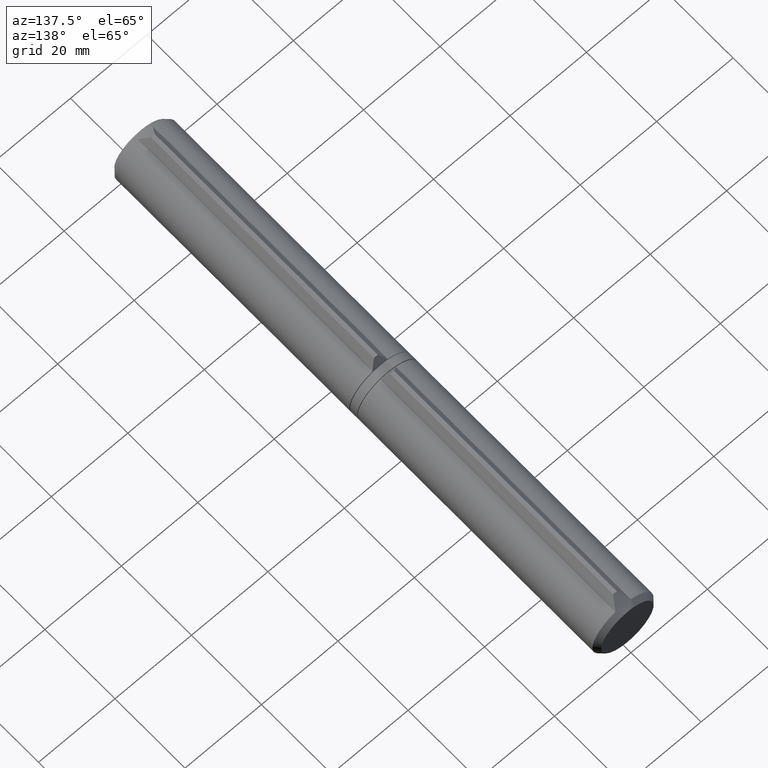
[diagram: clean part render]
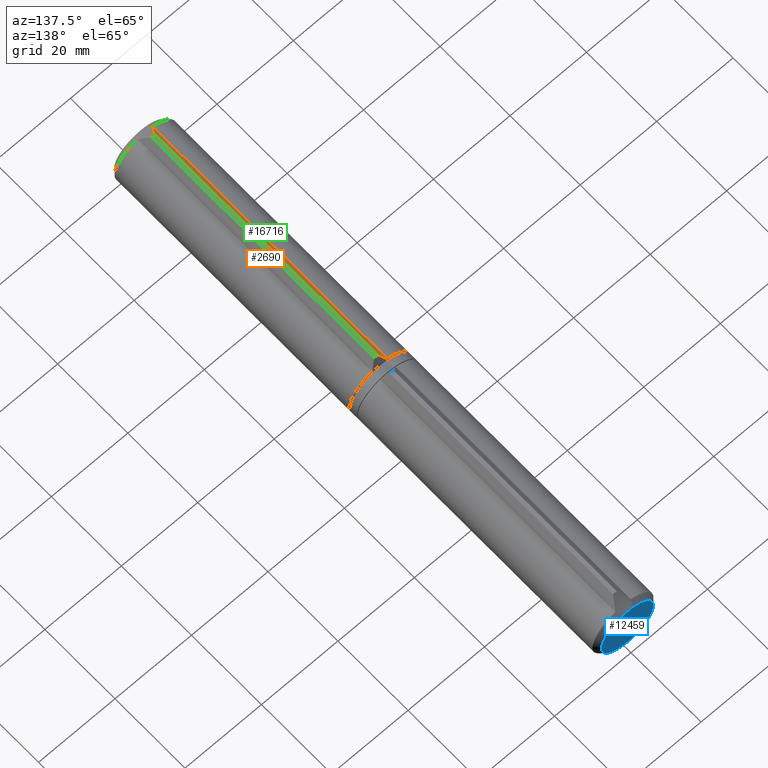
[diagram: same view with three faces highlighted in distinct colors, each labeled with its STEP entity id]
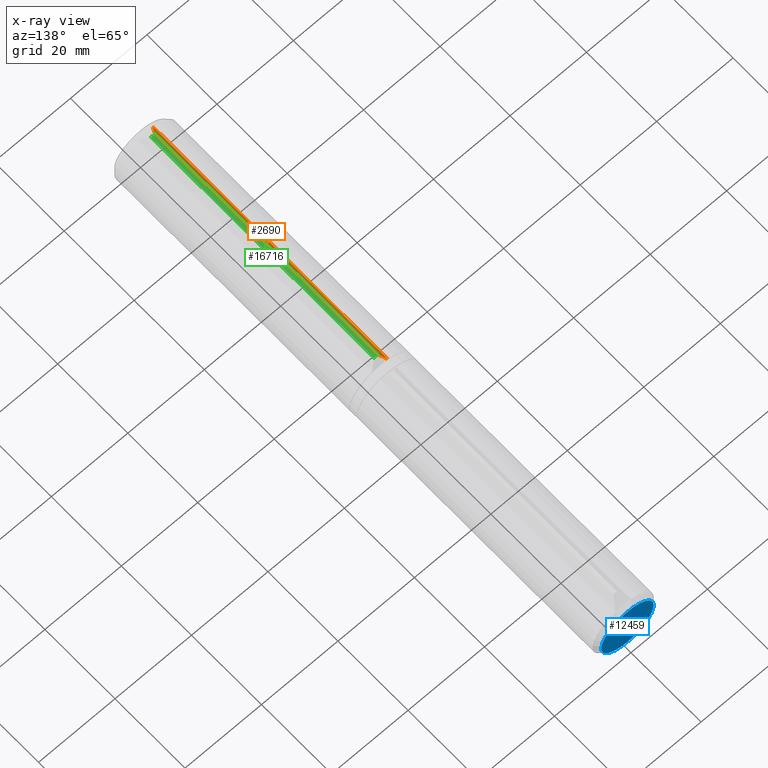
[diagram: x-ray of the same camera — body ghosted, the three highlighted faces saturated]
A machine part, auxiliary view with three faces highlighted in distinct colors.
The next image is the same camera in x-ray (body ghosted, the three faces saturated) — at least one of them is partly hidden behind the body in this view.
Their STEP definitions:

[orange] entity #2690 — the highlighted planar face has unit normal (-0.8325, 0, 0.554).
#359 = CARTESIAN_POINT ( 'NONE',  ( 0.9837837391402639575, 2.768140612047258031, -9.273023558873120464 ) ) ;
#674 = EDGE_CURVE ( 'NONE', #1405, #2374, #11466, .T. ) ;
#1271 = CARTESIAN_POINT ( 'NONE',  ( 1.491950127105262647, 67.99988805233594746, -8.509407582693935268 ) ) ;
#1405 = VERTEX_POINT ( 'NONE', #6624 ) ;
#1620 = CARTESIAN_POINT ( 'NONE',  ( 1.479702347256634409, 1.995575315282819284, -8.527812185176072646 ) ) ;
#2102 = EDGE_CURVE ( 'NONE', #4470, #1405, #10869, .T. ) ;
#2345 = ORIENTED_EDGE ( 'NONE', *, *, #6307, .F. ) ;
#2374 = VERTEX_POINT ( 'NONE', #14223 ) ;
#2535 = CARTESIAN_POINT ( 'NONE',  ( 0.5000000000000083267, 3.561355707479157306, -10.00000000000000000 ) ) ;
#2690 = ADVANCED_FACE ( 'NONE', ( #9147 ), #12343, .T. ) ;
#3727 = CARTESIAN_POINT ( 'NONE',  ( 2.000000000000202505, 68.35333380148330207, -7.745966692414835819 ) ) ;
#3980 = VERTEX_POINT ( 'NONE', #15847 ) ;
#4135 = CARTESIAN_POINT ( 'NONE',  ( 2.000000000000011546, 1.287078023558480000, -7.745966692414834931 ) ) ;
#4470 = VERTEX_POINT ( 'NONE', #2535 ) ;
#5493 = DIRECTION ( 'NONE',  ( 2.886579864025390439E-15, 1.000000000000000000, 0.000000000000000000 ) ) ;
#5940 = CARTESIAN_POINT ( 'NONE',  ( 1.999999999999988232, -4.591368657786415675, -7.745966692414835819 ) ) ;
#6307 = EDGE_CURVE ( 'NONE', #2374, #3980, #9541, .T. ) ;
#6624 = CARTESIAN_POINT ( 'NONE',  ( 2.000000000000011546, 1.287078023558480000, -7.745966692414834931 ) ) ;
#7128 = VECTOR ( 'NONE', #14105, 1000.000000000000000 ) ;
#7576 = CARTESIAN_POINT ( 'NONE',  ( 1.999999999999988232, -4.591368657786415675, -7.745966692414835819 ) ) ;
#8059 = CARTESIAN_POINT ( 'NONE',  ( 0.4999999999999886202, -4.591368657786438767, -10.00000000000000000 ) ) ;
#8071 = CARTESIAN_POINT ( 'NONE',  ( 0.5000000000000083267, 3.561355707479157306, -10.00000000000000000 ) ) ;
#9147 = FACE_OUTER_BOUND ( 'NONE', #13722, .T. ) ;
#9380 = VECTOR ( 'NONE', #5493, 1000.000000000000000 ) ;
#9541 = B_SPLINE_CURVE_WITH_KNOTS ( 'NONE', 3,
 ( #3727, #1271, #11628, #12937 ),
 .UNSPECIFIED., .F., .F.,
 ( 4, 4 ),
 ( 2.572824265816972799E-07, 0.002946561368288068330 ),
 .UNSPECIFIED. ) ;
#9745 = DIRECTION ( 'NONE',  ( 0.8325083697999536847, 2.403101896897176945E-15, -0.5540124675609958693 ) ) ;
#10691 = ORIENTED_EDGE ( 'NONE', *, *, #674, .F. ) ;
#10869 = B_SPLINE_CURVE_WITH_KNOTS ( 'NONE', 3,
 ( #8071, #359, #1620, #4135 ),
 .UNSPECIFIED., .F., .F.,
 ( 4, 4 ),
 ( 0.01086577870587800490, 0.01440535464140346548 ),
 .UNSPECIFIED. ) ;
#11466 = LINE ( 'NONE', #7576, #7128 ) ;
#11628 = CARTESIAN_POINT ( 'NONE',  ( 0.9937491818950969780, 67.60501674752667611, -9.258048598943354079 ) ) ;
#11748 = ORIENTED_EDGE ( 'NONE', *, *, #2102, .F. ) ;
#12343 = PLANE ( 'NONE',  #14566 ) ;
#12937 = CARTESIAN_POINT ( 'NONE',  ( 0.5000000000001936229, 67.19142088965877235, -10.00000000000000000 ) ) ;
#13536 = DIRECTION ( 'NONE',  ( -0.5540124675609958693, -1.599201233280607850E-15, -0.8325083697999536847 ) ) ;
#13722 = EDGE_LOOP ( 'NONE', ( #2345, #10691, #11748, #14903 ) ) ;
#14105 = DIRECTION ( 'NONE',  ( 2.886579864025390439E-15, 1.000000000000000000, 0.000000000000000000 ) ) ;
#14223 = CARTESIAN_POINT ( 'NONE',  ( 2.000000000000202505, 68.35333380148330207, -7.745966692414835819 ) ) ;
#14566 = AXIS2_PLACEMENT_3D ( 'NONE', #5940, #9745, #13536 ) ;
#14903 = ORIENTED_EDGE ( 'NONE', *, *, #16447, .T. ) ;
#15847 = CARTESIAN_POINT ( 'NONE',  ( 0.5000000000001936229, 67.19142088965877235, -10.00000000000000000 ) ) ;
#16310 = LINE ( 'NONE', #8059, #9380 ) ;
#16447 = EDGE_CURVE ( 'NONE', #4470, #3980, #16310, .T. ) ;

[blue] entity #12459 — the highlighted planar face has unit normal (-0, -1, 0).
#1399 = AXIS2_PLACEMENT_3D ( 'NONE', #10848, #8048, #5653 ) ;
#4330 = EDGE_CURVE ( 'NONE', #4486, #4486, #8723, .T. ) ;
#4486 = VERTEX_POINT ( 'NONE', #7105 ) ;
#5653 = DIRECTION ( 'NONE',  ( 0.000000000000000000, -0.000000000000000000, 1.000000000000000000 ) ) ;
#6333 = DIRECTION ( 'NONE',  ( -0.000000000000000000, -1.000000000000000000, -1.899128710886516785E-18 ) ) ;
#6532 = DIRECTION ( 'NONE',  ( 0.000000000000000000, 1.899128710886517170E-18, -1.000000000000000000 ) ) ;
#6958 = EDGE_LOOP ( 'NONE', ( #12975 ) ) ;
#7105 = CARTESIAN_POINT ( 'NONE',  ( 0.000000000000000000, 0.000000000000000000, -6.861073782688430711 ) ) ;
#7856 = CARTESIAN_POINT ( 'NONE',  ( 0.000000000000000000, -1.303006220821435837E-17, -2.474576524425725229E-35 ) ) ;
#8048 = DIRECTION ( 'NONE',  ( 0.000000000000000000, 1.000000000000000000, 0.000000000000000000 ) ) ;
#8723 = CIRCLE ( 'NONE', #13846, 6.861073782688430711 ) ;
#10848 = CARTESIAN_POINT ( 'NONE',  ( 0.000000000000000000, 0.000000000000000000, 0.000000000000000000 ) ) ;
#12459 = ADVANCED_FACE ( 'NONE', ( #16343 ), #13368, .F. ) ;
#12975 = ORIENTED_EDGE ( 'NONE', *, *, #4330, .T. ) ;
#13368 = PLANE ( 'NONE',  #1399 ) ;
#13846 = AXIS2_PLACEMENT_3D ( 'NONE', #7856, #6333, #6532 ) ;
#16343 = FACE_OUTER_BOUND ( 'NONE', #6958, .T. ) ;

[green] entity #16716 — the highlighted planar face has unit normal (0, 0, 1).
#606 = EDGE_LOOP ( 'NONE', ( #11506, #9385, #8312, #10531 ) ) ;
#1529 = AXIS2_PLACEMENT_3D ( 'NONE', #16530, #7574, #3770 ) ;
#1607 = CARTESIAN_POINT ( 'NONE',  ( 0.5000000000001936229, 67.19142088965877235, -10.00000000000000000 ) ) ;
#2000 = LINE ( 'NONE', #11294, #7074 ) ;
#2234 = CARTESIAN_POINT ( 'NONE',  ( 0.5000000000000083267, 3.561355707479157306, -10.00000000000000000 ) ) ;
#2535 = CARTESIAN_POINT ( 'NONE',  ( 0.5000000000000083267, 3.561355707479157306, -10.00000000000000000 ) ) ;
#3202 = CARTESIAN_POINT ( 'NONE',  ( -0.4999999999999915623, 3.561355707479159083, -10.00000000000000000 ) ) ;
#3471 = CARTESIAN_POINT ( 'NONE',  ( 0.1682147557384712222, 3.542631900051917526, -10.00000000000000000 ) ) ;
#3770 = DIRECTION ( 'NONE',  ( -1.000000000000000000, -2.886579864025423966E-15, 0.000000000000000000 ) ) ;
#3798 = EDGE_CURVE ( 'NONE', #13832, #12622, #2000, .T. ) ;
#3980 = VERTEX_POINT ( 'NONE', #15847 ) ;
#3984 = CARTESIAN_POINT ( 'NONE',  ( -0.4999999999999915623, 3.561355707479159083, -10.00000000000000000 ) ) ;
#4470 = VERTEX_POINT ( 'NONE', #2535 ) ;
#4606 = B_SPLINE_CURVE_WITH_KNOTS ( 'NONE', 3,
 ( #3202, #15205, #3471, #2234 ),
 .UNSPECIFIED., .F., .F.,
 ( 4, 4 ),
 ( 0.002552897944805510889, 0.003543990119483518900 ),
 .UNSPECIFIED. ) ;
#5493 = DIRECTION ( 'NONE',  ( 2.886579864025390439E-15, 1.000000000000000000, 0.000000000000000000 ) ) ;
#6125 = PLANE ( 'NONE',  #1529 ) ;
#6490 = EDGE_CURVE ( 'NONE', #3980, #12622, #8569, .T. ) ;
#7074 = VECTOR ( 'NONE', #12482, 1000.000000000000000 ) ;
#7129 = FACE_OUTER_BOUND ( 'NONE', #606, .T. ) ;
#7200 = CARTESIAN_POINT ( 'NONE',  ( -0.4999999999998057110, 67.19142088965877235, -10.00000000000000000 ) ) ;
#7296 = CARTESIAN_POINT ( 'NONE',  ( -0.4999999999998057110, 67.19142088965877235, -10.00000000000000000 ) ) ;
#7574 = DIRECTION ( 'NONE',  ( -0.000000000000000000, 0.000000000000000000, -1.000000000000000000 ) ) ;
#8059 = CARTESIAN_POINT ( 'NONE',  ( 0.4999999999999886202, -4.591368657786438767, -10.00000000000000000 ) ) ;
#8312 = ORIENTED_EDGE ( 'NONE', *, *, #15789, .F. ) ;
#8569 = B_SPLINE_CURVE_WITH_KNOTS ( 'NONE', 3,
 ( #1607, #10740, #16411, #7296 ),
 .UNSPECIFIED., .F., .F.,
 ( 4, 4 ),
 ( 0.006352582412659787264, 0.007339876202665142867 ),
 .UNSPECIFIED. ) ;
#9380 = VECTOR ( 'NONE', #5493, 1000.000000000000000 ) ;
#9385 = ORIENTED_EDGE ( 'NONE', *, *, #16447, .F. ) ;
#10531 = ORIENTED_EDGE ( 'NONE', *, *, #3798, .T. ) ;
#10740 = CARTESIAN_POINT ( 'NONE',  ( 0.1675097274665891256, 67.20100708181597327, -10.00000000000000000 ) ) ;
#11294 = CARTESIAN_POINT ( 'NONE',  ( -0.5000000000000114353, -4.591368657786438767, -10.00000000000000000 ) ) ;
#11506 = ORIENTED_EDGE ( 'NONE', *, *, #6490, .F. ) ;
#12482 = DIRECTION ( 'NONE',  ( 2.886579864025390439E-15, 1.000000000000000000, 0.000000000000000000 ) ) ;
#12622 = VERTEX_POINT ( 'NONE', #7200 ) ;
#13832 = VERTEX_POINT ( 'NONE', #3984 ) ;
#15205 = CARTESIAN_POINT ( 'NONE',  ( -0.1682147557384560677, 3.542631900051919303, -10.00000000000000000 ) ) ;
#15789 = EDGE_CURVE ( 'NONE', #13832, #4470, #4606, .T. ) ;
#15847 = CARTESIAN_POINT ( 'NONE',  ( 0.5000000000001936229, 67.19142088965877235, -10.00000000000000000 ) ) ;
#16310 = LINE ( 'NONE', #8059, #9380 ) ;
#16411 = CARTESIAN_POINT ( 'NONE',  ( -0.1675097274662017965, 67.20100708181597327, -10.00000000000000000 ) ) ;
#16447 = EDGE_CURVE ( 'NONE', #4470, #3980, #16310, .T. ) ;
#16530 = CARTESIAN_POINT ( 'NONE',  ( -0.5000000000000114353, -4.591368657786438767, -10.00000000000000000 ) ) ;
#16716 = ADVANCED_FACE ( 'NONE', ( #7129 ), #6125, .T. ) ;